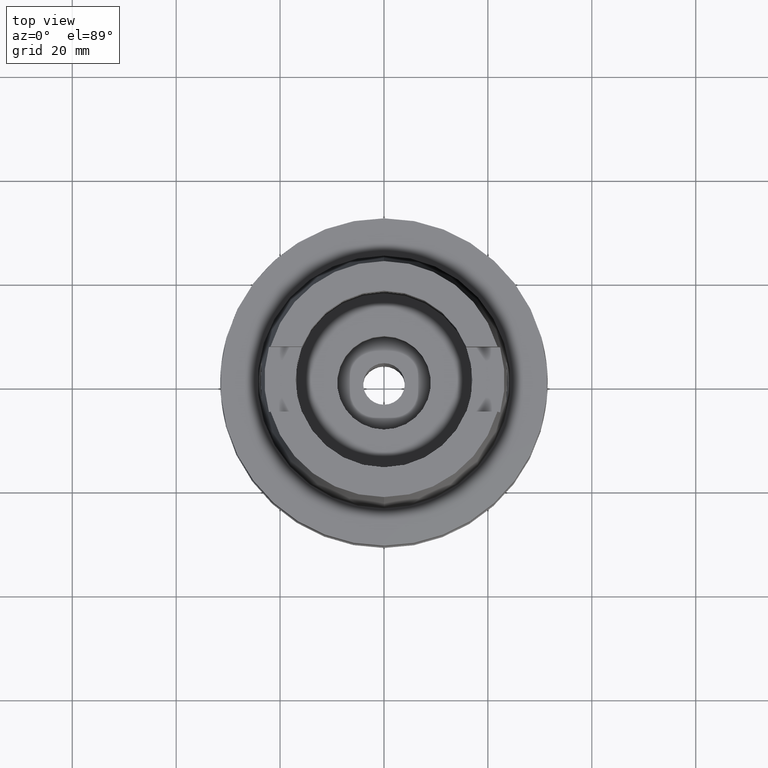
[diagram: clean part render]
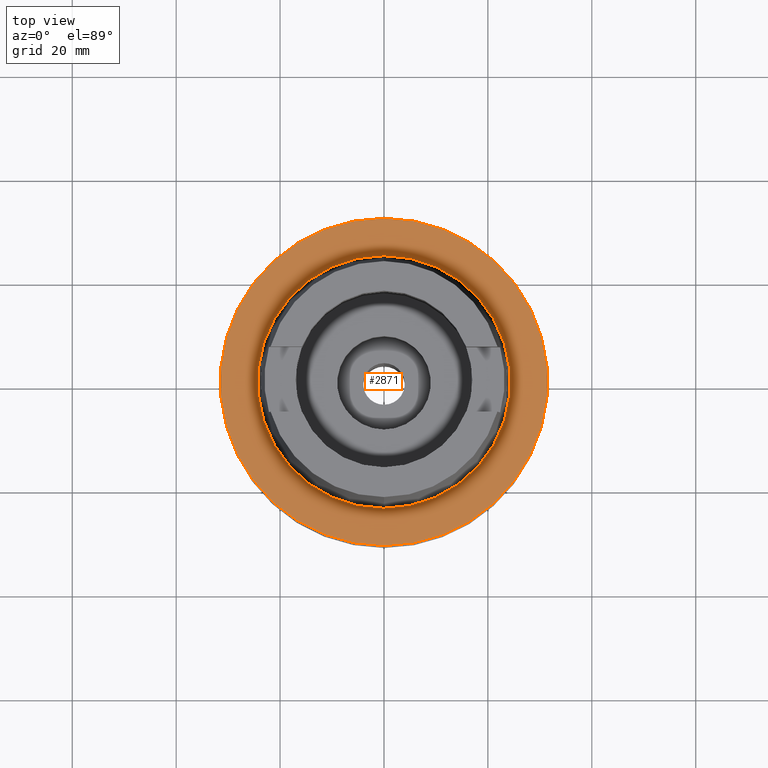
[diagram: same view with one face highlighted and labeled with its STEP entity id]
A machine part, top view. The second image highlights one B-rep face of the part: STEP entity #2871.
In plain terms, the highlighted planar face has unit normal (0, 0, -1).
Its self-contained STEP definition (entity closure, byte-faithful):
#595=CARTESIAN_POINT('',(0.E0,1.683277025428E-14,0.E0));
#596=DIRECTION('',(0.E0,0.E0,-1.E0));
#597=DIRECTION('',(0.E0,-1.E0,0.E0));
#598=AXIS2_PLACEMENT_3D('',#595,#596,#597);
#603=CARTESIAN_POINT('',(0.E0,1.683277025428E-14,0.E0));
#604=DIRECTION('',(0.E0,0.E0,-1.E0));
#605=DIRECTION('',(0.E0,1.E0,0.E0));
#606=AXIS2_PLACEMENT_3D('',#603,#604,#605);
#611=CARTESIAN_POINT('',(0.E0,1.420590287011E-14,9.094947017729E-13));
#612=DIRECTION('',(0.E0,0.E0,1.E0));
#613=DIRECTION('',(0.E0,-1.E0,0.E0));
#614=AXIS2_PLACEMENT_3D('',#611,#612,#613);
#619=CARTESIAN_POINT('',(0.E0,1.420590287011E-14,9.094947017729E-13));
#620=DIRECTION('',(0.E0,0.E0,1.E0));
#621=DIRECTION('',(0.E0,1.E0,0.E0));
#622=AXIS2_PLACEMENT_3D('',#619,#620,#621);
#2227=CARTESIAN_POINT('',(0.E0,2.431503482329E1,4.547473508865E-13));
#2228=VERTEX_POINT('',#2227);
#2229=CARTESIAN_POINT('',(0.E0,-2.431503482329E1,9.094947017729E-13));
#2230=VERTEX_POINT('',#2229);
#2233=CARTESIAN_POINT('',(0.E0,-3.15E1,0.E0));
#2234=CARTESIAN_POINT('',(0.E0,3.15E1,0.E0));
#2235=VERTEX_POINT('',#2233);
#2236=VERTEX_POINT('',#2234);
#2856=CARTESIAN_POINT('',(0.E0,1.224646799147E-14,0.E0));
#2857=DIRECTION('',(0.E0,0.E0,-1.E0));
#2858=DIRECTION('',(0.E0,-1.E0,0.E0));
#2859=AXIS2_PLACEMENT_3D('',#2856,#2857,#2858);
#2860=PLANE('',#2859);
#2862=ORIENTED_EDGE('',*,*,#2861,.T.);
#2864=ORIENTED_EDGE('',*,*,#2863,.T.);
#2865=EDGE_LOOP('',(#2862,#2864));
#2866=FACE_OUTER_BOUND('',#2865,.F.);
#2867=ORIENTED_EDGE('',*,*,#2844,.T.);
#2868=ORIENTED_EDGE('',*,*,#2781,.T.);
#2869=EDGE_LOOP('',(#2867,#2868));
#2870=FACE_BOUND('',#2869,.F.);
#599=CIRCLE('',#598,3.15E1);
#607=CIRCLE('',#606,3.15E1);
#615=CIRCLE('',#614,2.431503482329E1);
#623=CIRCLE('',#622,2.431503482329E1);
#2781=EDGE_CURVE('',#2228,#2230,#623,.T.);
#2844=EDGE_CURVE('',#2230,#2228,#615,.T.);
#2861=EDGE_CURVE('',#2235,#2236,#599,.T.);
#2863=EDGE_CURVE('',#2236,#2235,#607,.T.);
#2871=ADVANCED_FACE('',(#2866,#2870),#2860,.F.);